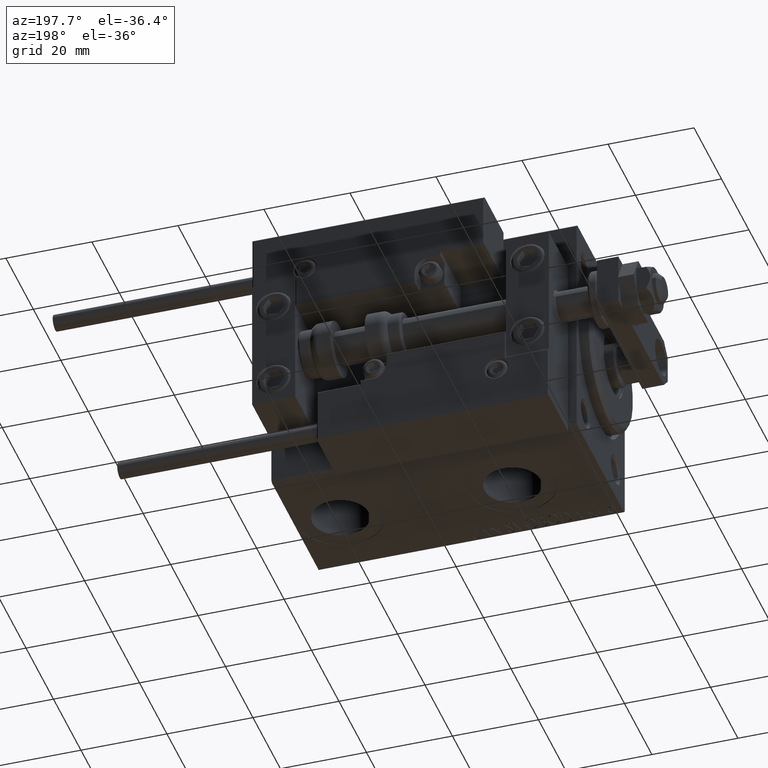
[diagram: clean part render]
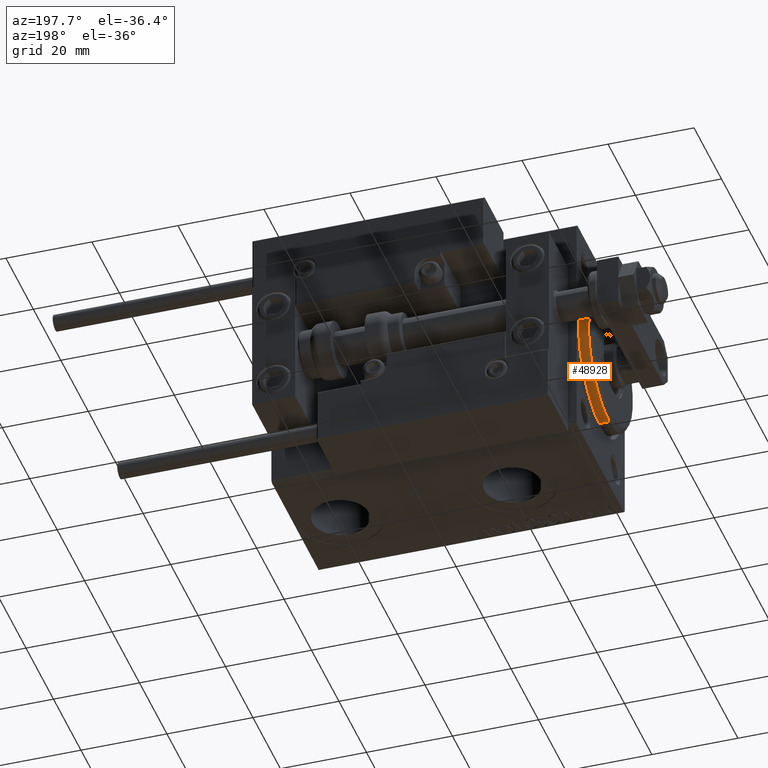
[diagram: same view with one face highlighted and labeled with its STEP entity id]
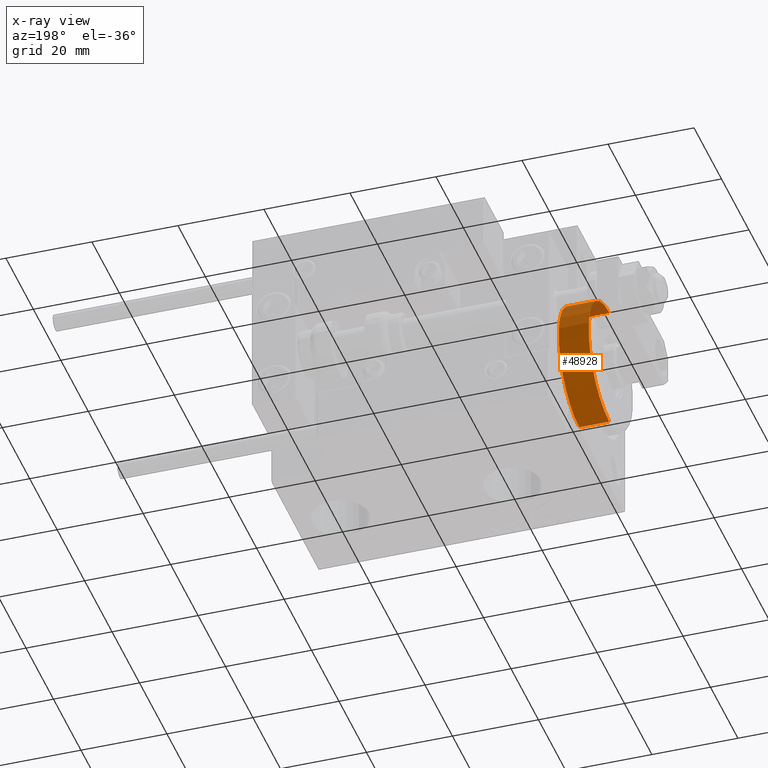
[diagram: x-ray of the same camera — body ghosted, the highlighted face saturated]
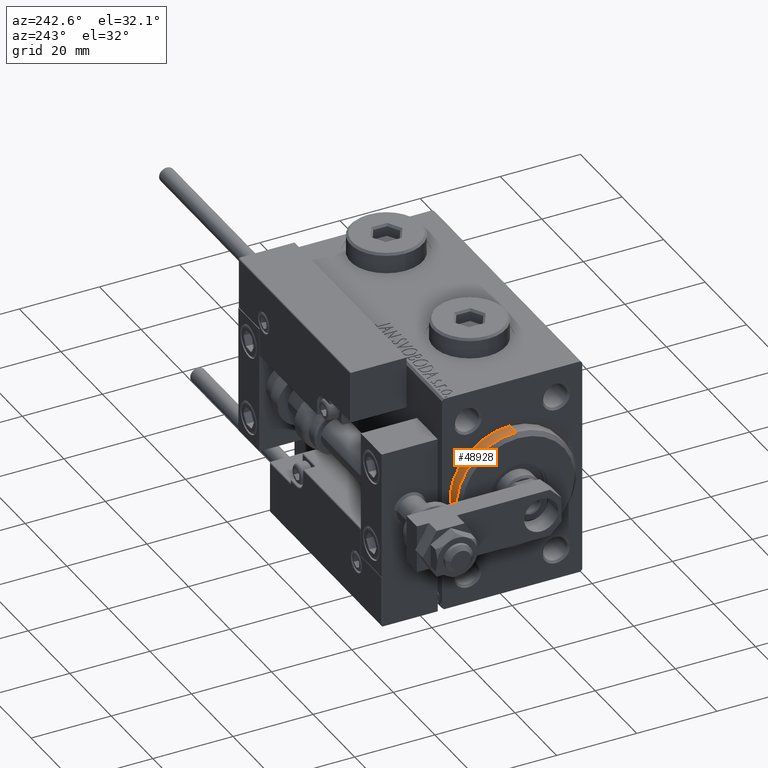
[diagram: same view with one face highlighted and labeled with its STEP entity id]
A machine part, auxiliary view. The second image highlights one B-rep face of the part: STEP entity #48928.
The next image is the same camera in x-ray: the body ghosted, the highlighted face saturated — about 9% of this face is hidden behind the body in this view.
A second angle (auxiliary view) of the same face is appended — the face is thin or edge-on in the first view.
In plain terms, the highlighted cylindrical surface (partial cylindrical patch) has radius 15 mm, axis along (1, -0, -0).
Its self-contained STEP definition (entity closure, byte-faithful):
#383 = CARTESIAN_POINT ( 'NONE',  ( -5.000000000000000000, 1.836970198721029589E-15, -15.00000000000000000 ) ) ;
#1518 = CARTESIAN_POINT ( 'NONE',  ( 1.999999999999995781, 0.000000000000000000, 0.000000000000000000 ) ) ;
#1917 = ORIENTED_EDGE ( 'NONE', *, *, #5243, .T. ) ;
#4459 = EDGE_CURVE ( 'NONE', #39283, #22445, #40261, .T. ) ;
#5243 = EDGE_CURVE ( 'NONE', #32165, #11057, #21633, .T. ) ;
#6789 = CARTESIAN_POINT ( 'NONE',  ( 1.999999999999995781, 0.000000000000000000, 15.00000000000000000 ) ) ;
#10107 = EDGE_CURVE ( 'NONE', #11057, #22445, #12127, .T. ) ;
#10749 = CARTESIAN_POINT ( 'NONE',  ( 3.000000000000000000, 1.836970198721029589E-15, -15.00000000000000000 ) ) ;
#11057 = VERTEX_POINT ( 'NONE', #6789 ) ;
#12127 = LINE ( 'NONE', #52482, #50630 ) ;
#17151 = DIRECTION ( 'NONE',  ( -1.000000000000000000, 0.000000000000000000, 0.000000000000000000 ) ) ;
#17547 = CYLINDRICAL_SURFACE ( 'NONE', #27316, 15.00000000000000000 ) ;
#19240 = LINE ( 'NONE', #10749, #45105 ) ;
#21129 = DIRECTION ( 'NONE',  ( 0.000000000000000000, 0.000000000000000000, 1.000000000000000000 ) ) ;
#21633 = CIRCLE ( 'NONE', #36901, 15.00000000000000000 ) ;
#22445 = VERTEX_POINT ( 'NONE', #43871 ) ;
#23030 = EDGE_CURVE ( 'NONE', #32165, #39283, #19240, .T. ) ;
#23096 = ORIENTED_EDGE ( 'NONE', *, *, #4459, .F. ) ;
#23484 = DIRECTION ( 'NONE',  ( -1.000000000000000000, -0.000000000000000000, -0.000000000000000000 ) ) ;
#24982 = AXIS2_PLACEMENT_3D ( 'NONE', #37344, #17151, #21129 ) ;
#24993 = FACE_OUTER_BOUND ( 'NONE', #31075, .T. ) ;
#27316 = AXIS2_PLACEMENT_3D ( 'NONE', #45183, #36957, #29251 ) ;
#28625 = ORIENTED_EDGE ( 'NONE', *, *, #23030, .F. ) ;
#29251 = DIRECTION ( 'NONE',  ( 0.000000000000000000, 0.000000000000000000, 1.000000000000000000 ) ) ;
#31075 = EDGE_LOOP ( 'NONE', ( #28625, #1917, #35280, #23096 ) ) ;
#32165 = VERTEX_POINT ( 'NONE', #40908 ) ;
#35280 = ORIENTED_EDGE ( 'NONE', *, *, #10107, .T. ) ;
#36302 = DIRECTION ( 'NONE',  ( -1.000000000000000000, -0.000000000000000000, -0.000000000000000000 ) ) ;
#36901 = AXIS2_PLACEMENT_3D ( 'NONE', #1518, #42417, #50361 ) ;
#36957 = DIRECTION ( 'NONE',  ( -1.000000000000000000, -0.000000000000000000, -0.000000000000000000 ) ) ;
#37344 = CARTESIAN_POINT ( 'NONE',  ( -5.000000000000000000, 0.000000000000000000, 0.000000000000000000 ) ) ;
#39283 = VERTEX_POINT ( 'NONE', #383 ) ;
#40261 = CIRCLE ( 'NONE', #24982, 15.00000000000000000 ) ;
#40908 = CARTESIAN_POINT ( 'NONE',  ( 1.999999999999995781, 1.836970198721029589E-15, -15.00000000000000000 ) ) ;
#42417 = DIRECTION ( 'NONE',  ( -1.000000000000000000, 0.000000000000000000, 0.000000000000000000 ) ) ;
#43871 = CARTESIAN_POINT ( 'NONE',  ( -5.000000000000000000, 0.000000000000000000, 15.00000000000000000 ) ) ;
#45105 = VECTOR ( 'NONE', #23484, 1000.000000000000000 ) ;
#45183 = CARTESIAN_POINT ( 'NONE',  ( 3.000000000000000000, 0.000000000000000000, 0.000000000000000000 ) ) ;
#48928 = ADVANCED_FACE ( 'NONE', ( #24993 ), #17547, .T. ) ;
#50361 = DIRECTION ( 'NONE',  ( 0.000000000000000000, 0.000000000000000000, -1.000000000000000000 ) ) ;
#50630 = VECTOR ( 'NONE', #36302, 1000.000000000000000 ) ;
#52482 = CARTESIAN_POINT ( 'NONE',  ( 3.000000000000000000, 0.000000000000000000, 15.00000000000000000 ) ) ;